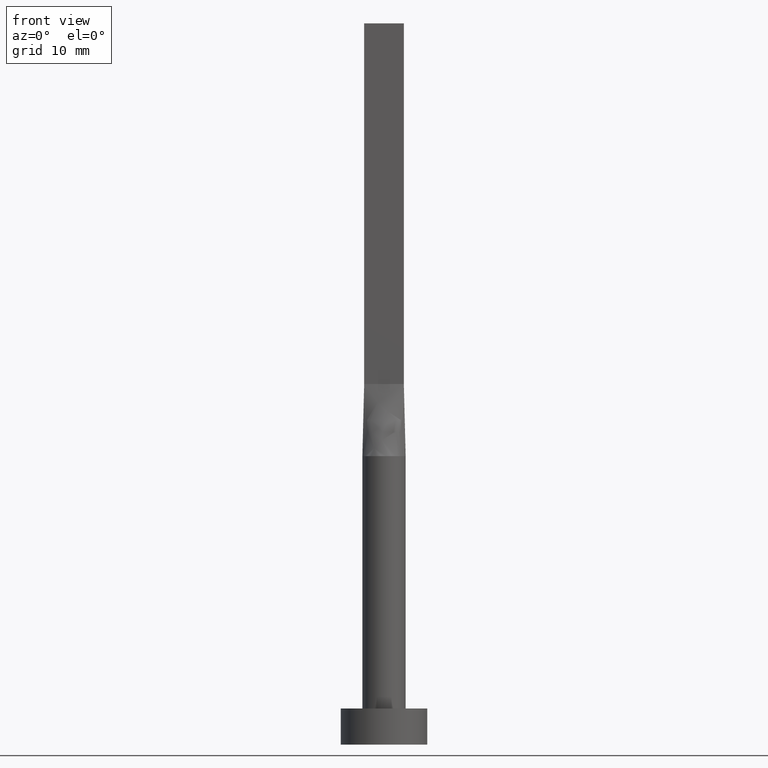
[diagram: clean part render]
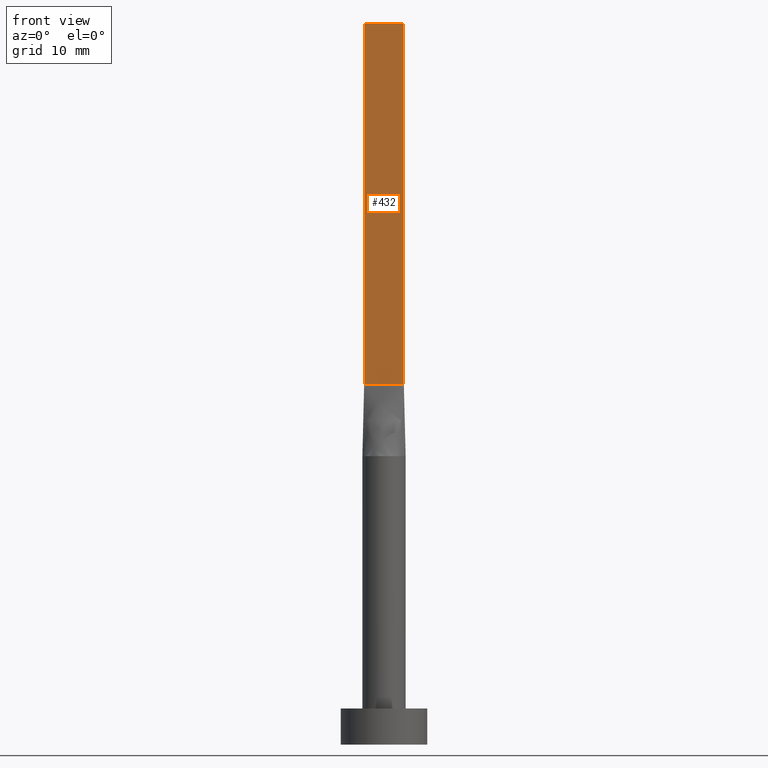
[diagram: same view with one face highlighted and labeled with its STEP entity id]
A machine part, front view. The second image highlights one B-rep face of the part: STEP entity #432.
In plain terms, the highlighted planar face has unit normal (0, 1, -0).
Its self-contained STEP definition (entity closure, byte-faithful):
#2 = LINE ( 'NONE', #391, #503 ) ;
#11 = LINE ( 'NONE', #14, #96 ) ;
#14 = CARTESIAN_POINT ( 'NONE',  ( -2.750000000000000000, -0.5999999999999994227, 100.0000000000000000 ) ) ;
#43 = CARTESIAN_POINT ( 'NONE',  ( -2.750000000000000000, -0.5999999999999994227, 100.0000000000000000 ) ) ;
#45 = VERTEX_POINT ( 'NONE', #539 ) ;
#60 = CARTESIAN_POINT ( 'NONE',  ( -2.750000000000000000, -0.5999999999999994227, 100.0000000000000000 ) ) ;
#90 = CARTESIAN_POINT ( 'NONE',  ( 2.750000000000000000, -0.5999999999999997558, 50.00000000000000000 ) ) ;
#96 = VECTOR ( 'NONE', #282, 1000.000000000000000 ) ;
#130 = ORIENTED_EDGE ( 'NONE', *, *, #241, .T. ) ;
#181 = VERTEX_POINT ( 'NONE', #90 ) ;
#185 = EDGE_LOOP ( 'NONE', ( #360, #366, #534, #130 ) ) ;
#219 = DIRECTION ( 'NONE',  ( 1.000000000000000000, -5.913830031739115543E-17, 0.000000000000000000 ) ) ;
#232 = VERTEX_POINT ( 'NONE', #314 ) ;
#236 = EDGE_CURVE ( 'NONE', #45, #181, #2, .T. ) ;
#238 = VECTOR ( 'NONE', #488, 1000.000000000000000 ) ;
#241 = EDGE_CURVE ( 'NONE', #232, #45, #396, .T. ) ;
#242 = DIRECTION ( 'NONE',  ( -0.000000000000000000, -0.000000000000000000, -1.000000000000000000 ) ) ;
#256 = DIRECTION ( 'NONE',  ( -1.000000000000000000, 5.913830031739115543E-17, 0.000000000000000000 ) ) ;
#282 = DIRECTION ( 'NONE',  ( 1.000000000000000000, -5.913830031739115543E-17, 0.000000000000000000 ) ) ;
#285 = FACE_OUTER_BOUND ( 'NONE', #185, .T. ) ;
#314 = CARTESIAN_POINT ( 'NONE',  ( -2.750000000000000000, -0.5999999999999994227, 100.0000000000000000 ) ) ;
#319 = EDGE_CURVE ( 'NONE', #530, #181, #420, .T. ) ;
#344 = DIRECTION ( 'NONE',  ( 5.913830031739115543E-17, 1.000000000000000000, -0.000000000000000000 ) ) ;
#360 = ORIENTED_EDGE ( 'NONE', *, *, #236, .T. ) ;
#361 = AXIS2_PLACEMENT_3D ( 'NONE', #60, #344, #256 ) ;
#366 = ORIENTED_EDGE ( 'NONE', *, *, #319, .F. ) ;
#379 = CARTESIAN_POINT ( 'NONE',  ( 2.750000000000000000, -0.5999999999999997558, 100.0000000000000000 ) ) ;
#391 = CARTESIAN_POINT ( 'NONE',  ( -2.750000000000000000, -0.5999999999999994227, 50.00000000000000000 ) ) ;
#396 = LINE ( 'NONE', #43, #238 ) ;
#412 = EDGE_CURVE ( 'NONE', #232, #530, #11, .T. ) ;
#420 = LINE ( 'NONE', #495, #459 ) ;
#432 = ADVANCED_FACE ( 'NONE', ( #285 ), #460, .F. ) ;
#459 = VECTOR ( 'NONE', #242, 1000.000000000000000 ) ;
#460 = PLANE ( 'NONE',  #361 ) ;
#488 = DIRECTION ( 'NONE',  ( -0.000000000000000000, -0.000000000000000000, -1.000000000000000000 ) ) ;
#495 = CARTESIAN_POINT ( 'NONE',  ( 2.750000000000000000, -0.5999999999999997558, 100.0000000000000000 ) ) ;
#503 = VECTOR ( 'NONE', #219, 1000.000000000000000 ) ;
#530 = VERTEX_POINT ( 'NONE', #379 ) ;
#534 = ORIENTED_EDGE ( 'NONE', *, *, #412, .F. ) ;
#539 = CARTESIAN_POINT ( 'NONE',  ( -2.750000000000000000, -0.5999999999999994227, 50.00000000000000000 ) ) ;